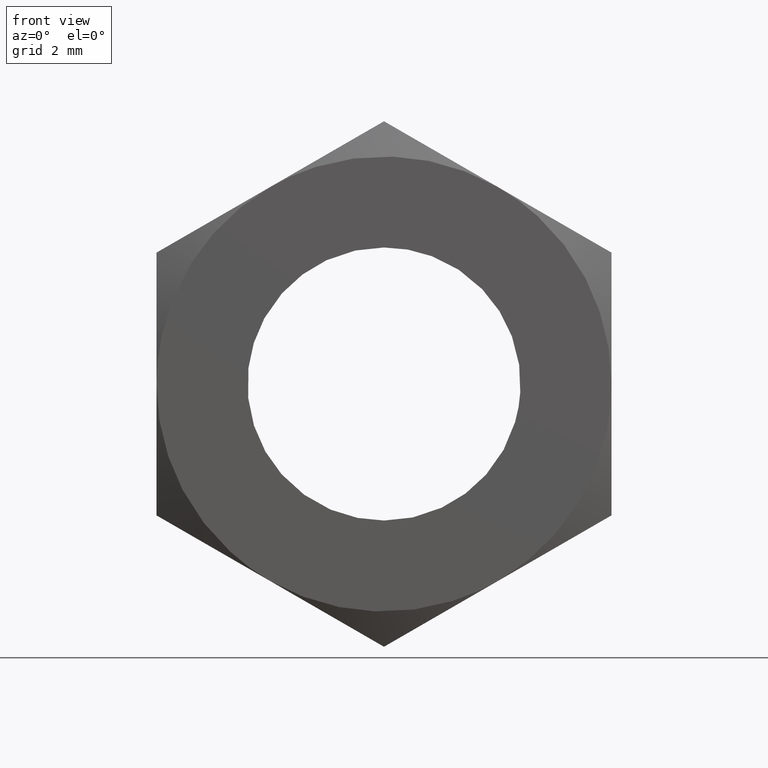
[diagram: clean part render]
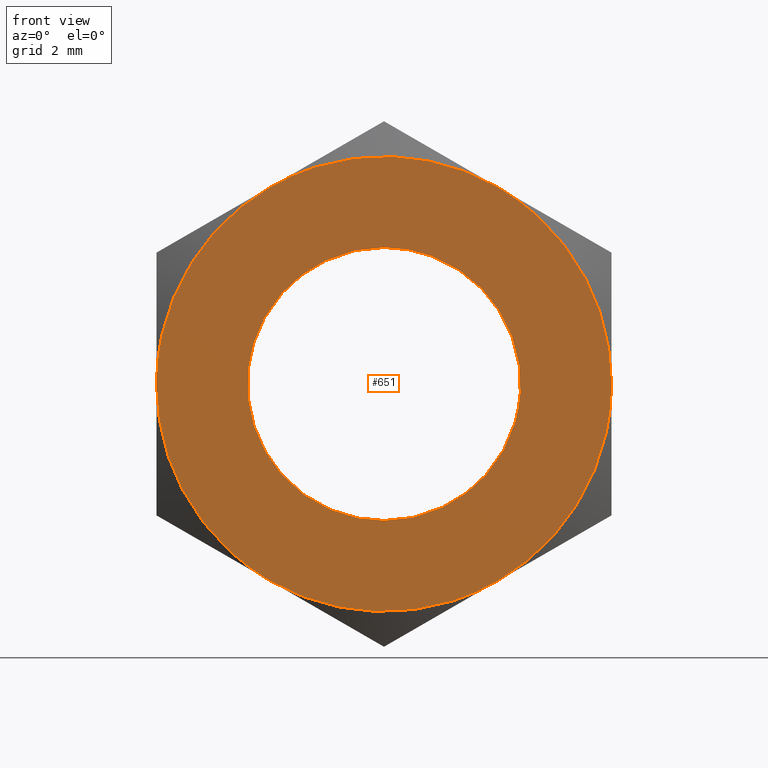
[diagram: same view with one face highlighted and labeled with its STEP entity id]
A machine part, front view. The second image highlights one B-rep face of the part: STEP entity #651.
In plain terms, the highlighted face is a freeform B-spline surface patch.
Its self-contained STEP definition (entity closure, byte-faithful):
#85=CARTESIAN_POINT('',(-2.979029043188417,-5.0,0.354098799524145));
#86=VERTEX_POINT('',#85);
#92=CARTESIAN_POINT('',(0.0,-5.0,-3.0));
#93=VERTEX_POINT('',#92);
#94=CARTESIAN_POINT('',(-2.979029043188417,-5.0,0.354098799524145));
#95=CARTESIAN_POINT('',(-3.000000000000000,-5.0,0.177670386094396));
#96=CARTESIAN_POINT('',(-3.0,-5.0,0.0));
#97=CARTESIAN_POINT('',(-3.0,-5.000000000000001,-3.0));
#98=CARTESIAN_POINT('',(0.0,-5.0,-3.0));
#106=(BOUNDED_CURVE()B_SPLINE_CURVE(2,(#94,#95,#96,#97,#98),.UNSPECIFIED.,.F.,.U.)B_SPLINE_CURVE_WITH_KNOTS((3,2,3),(0.229562695018767,0.250000000000000,0.500000000000000),.UNSPECIFIED.)CURVE()GEOMETRIC_REPRESENTATION_ITEM()RATIONAL_B_SPLINE_CURVE((0.956027188343531,0.976056207840698,1.0,0.707106781186548,1.0))REPRESENTATION_ITEM(''));
#107=EDGE_CURVE('',#86,#93,#106,.T.);
#109=CARTESIAN_POINT('',(2.994404452998527,-5.0,-0.183144674674689));
#110=VERTEX_POINT('',#109);
#111=CARTESIAN_POINT('',(0.0,-5.0,-3.0));
#112=CARTESIAN_POINT('',(2.822119983282192,-5.0,-3.0));
#113=CARTESIAN_POINT('',(2.994404452998527,-5.000000000000001,-0.183144674674689));
#121=(BOUNDED_CURVE()B_SPLINE_CURVE(2,(#111,#112,#113),.UNSPECIFIED.,.F.,.U.)B_SPLINE_CURVE_WITH_KNOTS((3,3),(0.500000000000000,0.739333071026264),.UNSPECIFIED.)CURVE()GEOMETRIC_REPRESENTATION_ITEM()RATIONAL_B_SPLINE_CURVE((1.0,0.719603865834435,0.976072274818767))REPRESENTATION_ITEM(''));
#122=EDGE_CURVE('',#93,#110,#121,.T.);
#196=CARTESIAN_POINT('',(0.0,-5.0,3.0));
#197=VERTEX_POINT('',#196);
#198=CARTESIAN_POINT('',(2.994404452998527,-5.0,-0.183144674674689));
#199=CARTESIAN_POINT('',(3.000000000000000,-5.0,-0.091657343319225));
#200=CARTESIAN_POINT('',(3.0,-5.0,0.0));
#201=CARTESIAN_POINT('',(3.0,-5.000000000000001,3.0));
#202=CARTESIAN_POINT('',(0.0,-5.0,3.0));
#210=(BOUNDED_CURVE()B_SPLINE_CURVE(2,(#198,#199,#200,#201,#202),.UNSPECIFIED.,.F.,.U.)B_SPLINE_CURVE_WITH_KNOTS((3,2,3),(0.739333071026264,0.750000000000000,1.0),.UNSPECIFIED.)CURVE()GEOMETRIC_REPRESENTATION_ITEM()RATIONAL_B_SPLINE_CURVE((0.976072274818767,0.987502915352112,1.0,0.707106781186548,1.0))REPRESENTATION_ITEM(''));
#211=EDGE_CURVE('',#110,#197,#210,.T.);
#213=CARTESIAN_POINT('',(0.0,-5.0,3.0));
#214=CARTESIAN_POINT('',(-2.664527094681900,-5.0,3.000000000000000));
#215=CARTESIAN_POINT('',(-2.979029043188417,-5.0,0.354098799524145));
#223=(BOUNDED_CURVE()B_SPLINE_CURVE(2,(#213,#214,#215),.UNSPECIFIED.,.F.,.U.)B_SPLINE_CURVE_WITH_KNOTS((3,3),(0.0,0.229562695018767),.UNSPECIFIED.)CURVE()GEOMETRIC_REPRESENTATION_ITEM()RATIONAL_B_SPLINE_CURVE((1.0,0.731050573345850,0.956027188343531))REPRESENTATION_ITEM(''));
#224=EDGE_CURVE('',#197,#86,#223,.T.);
#293=CARTESIAN_POINT('',(-2.500000000000000,-5.0,-4.330127018922216));
#294=VERTEX_POINT('',#293);
#344=CARTESIAN_POINT('',(2.500000000000000,-5.0,-4.330127018922216));
#345=VERTEX_POINT('',#344);
#389=CARTESIAN_POINT('',(5.0,-5.0,-8.673617E-016));
#390=VERTEX_POINT('',#389);
#436=CARTESIAN_POINT('',(2.500000000000000,-5.0,4.330127018922216));
#437=VERTEX_POINT('',#436);
#481=CARTESIAN_POINT('',(-2.500000000000000,-5.0,4.330127018922211));
#482=VERTEX_POINT('',#481);
#524=CARTESIAN_POINT('',(-5.0,-5.0,-8.673617E-016));
#525=VERTEX_POINT('',#524);
#560=CARTESIAN_POINT('',(-5.499499980618060,-5.0,-5.499498894162820));
#561=CARTESIAN_POINT('',(-5.499499980618060,-5.0,5.499498625941960));
#562=CARTESIAN_POINT('',(5.499500248838961,-5.0,-5.499498894162820));
#563=CARTESIAN_POINT('',(5.499500248838961,-5.0,5.499498625941960));
#564=B_SPLINE_SURFACE_WITH_KNOTS('',1,1,((#560,#562),(#561,#563)),.UNSPECIFIED.,.F.,.F.,.U.,(2,2),(2,2),(0.0,10.998997520104780),(0.0,10.999000229457019),.UNSPECIFIED.);
#565=CARTESIAN_POINT('',(2.500000000000000,-5.0,-4.330127018922216));
#566=CARTESIAN_POINT('',(4.999998535914707,-5.0,-2.886750500658105));
#567=CARTESIAN_POINT('',(5.0,-5.0,-8.673617E-016));
#575=(BOUNDED_CURVE()B_SPLINE_CURVE(2,(#565,#566,#567),.UNSPECIFIED.,.F.,.U.)CURVE()GEOMETRIC_REPRESENTATION_ITEM()QUASI_UNIFORM_CURVE()RATIONAL_B_SPLINE_CURVE((1.0,0.866025403784438,1.0))REPRESENTATION_ITEM(''));
#576=EDGE_CURVE('',#345,#390,#575,.T.);
#577=ORIENTED_EDGE('',*,*,#576,.T.);
#578=CARTESIAN_POINT('',(5.0,-5.0,-8.673617E-016));
#579=CARTESIAN_POINT('',(4.999998535914707,-5.0,2.886750500658105));
#580=CARTESIAN_POINT('',(2.500000000000000,-5.0,4.330127018922216));
#588=(BOUNDED_CURVE()B_SPLINE_CURVE(2,(#578,#579,#580),.UNSPECIFIED.,.F.,.U.)CURVE()GEOMETRIC_REPRESENTATION_ITEM()QUASI_UNIFORM_CURVE()RATIONAL_B_SPLINE_CURVE((1.0,0.866025403784438,1.0))REPRESENTATION_ITEM(''));
#589=EDGE_CURVE('',#390,#437,#588,.T.);
#590=ORIENTED_EDGE('',*,*,#589,.T.);
#591=CARTESIAN_POINT('',(2.500000000000000,-5.0,4.330127018922216));
#592=CARTESIAN_POINT('',(1.040834E-017,-4.999999999999999,5.773501001316185));
#593=CARTESIAN_POINT('',(-2.500000000000000,-5.0,4.330127018922211));
#601=(BOUNDED_CURVE()B_SPLINE_CURVE(2,(#591,#592,#593),.UNSPECIFIED.,.F.,.U.)CURVE()GEOMETRIC_REPRESENTATION_ITEM()QUASI_UNIFORM_CURVE()RATIONAL_B_SPLINE_CURVE((1.0,0.866025403784440,1.0))REPRESENTATION_ITEM(''));
#602=EDGE_CURVE('',#437,#482,#601,.T.);
#603=ORIENTED_EDGE('',*,*,#602,.T.);
#604=CARTESIAN_POINT('',(-2.500000000000000,-5.0,4.330127018922211));
#605=CARTESIAN_POINT('',(-4.999998535914706,-5.0,2.886750500658101));
#606=CARTESIAN_POINT('',(-5.0,-5.0,-8.673617E-016));
#614=(BOUNDED_CURVE()B_SPLINE_CURVE(2,(#604,#605,#606),.UNSPECIFIED.,.F.,.U.)CURVE()GEOMETRIC_REPRESENTATION_ITEM()QUASI_UNIFORM_CURVE()RATIONAL_B_SPLINE_CURVE((1.0,0.866025403784438,1.0))REPRESENTATION_ITEM(''));
#615=EDGE_CURVE('',#482,#525,#614,.T.);
#616=ORIENTED_EDGE('',*,*,#615,.T.);
#617=CARTESIAN_POINT('',(-5.0,-5.0,-8.673617E-016));
#618=CARTESIAN_POINT('',(-4.999998535914706,-5.0,-2.886750500658105));
#619=CARTESIAN_POINT('',(-2.500000000000000,-5.0,-4.330127018922216));
#627=(BOUNDED_CURVE()B_SPLINE_CURVE(2,(#617,#618,#619),.UNSPECIFIED.,.F.,.U.)CURVE()GEOMETRIC_REPRESENTATION_ITEM()QUASI_UNIFORM_CURVE()RATIONAL_B_SPLINE_CURVE((1.0,0.866025403784438,1.0))REPRESENTATION_ITEM(''));
#628=EDGE_CURVE('',#525,#294,#627,.T.);
#629=ORIENTED_EDGE('',*,*,#628,.T.);
#630=CARTESIAN_POINT('',(-2.500000000000000,-5.0,-4.330127018922216));
#631=CARTESIAN_POINT('',(-6.245015E-016,-5.0,-5.773501001316185));
#632=CARTESIAN_POINT('',(2.500000000000000,-5.0,-4.330127018922216));
#640=(BOUNDED_CURVE()B_SPLINE_CURVE(2,(#630,#631,#632),.UNSPECIFIED.,.F.,.U.)CURVE()GEOMETRIC_REPRESENTATION_ITEM()QUASI_UNIFORM_CURVE()RATIONAL_B_SPLINE_CURVE((1.0,0.866025403784440,1.0))REPRESENTATION_ITEM(''));
#641=EDGE_CURVE('',#294,#345,#640,.T.);
#642=ORIENTED_EDGE('',*,*,#641,.T.);
#643=EDGE_LOOP('',(#577,#590,#603,#616,#629,#642));
#644=FACE_OUTER_BOUND('',#643,.T.);
#645=ORIENTED_EDGE('',*,*,#122,.F.);
#646=ORIENTED_EDGE('',*,*,#107,.F.);
#647=ORIENTED_EDGE('',*,*,#224,.F.);
#648=ORIENTED_EDGE('',*,*,#211,.F.);
#649=EDGE_LOOP('',(#645,#646,#647,#648));
#650=FACE_BOUND('',#649,.T.);
#651=ADVANCED_FACE('',(#644,#650),#564,.F.);